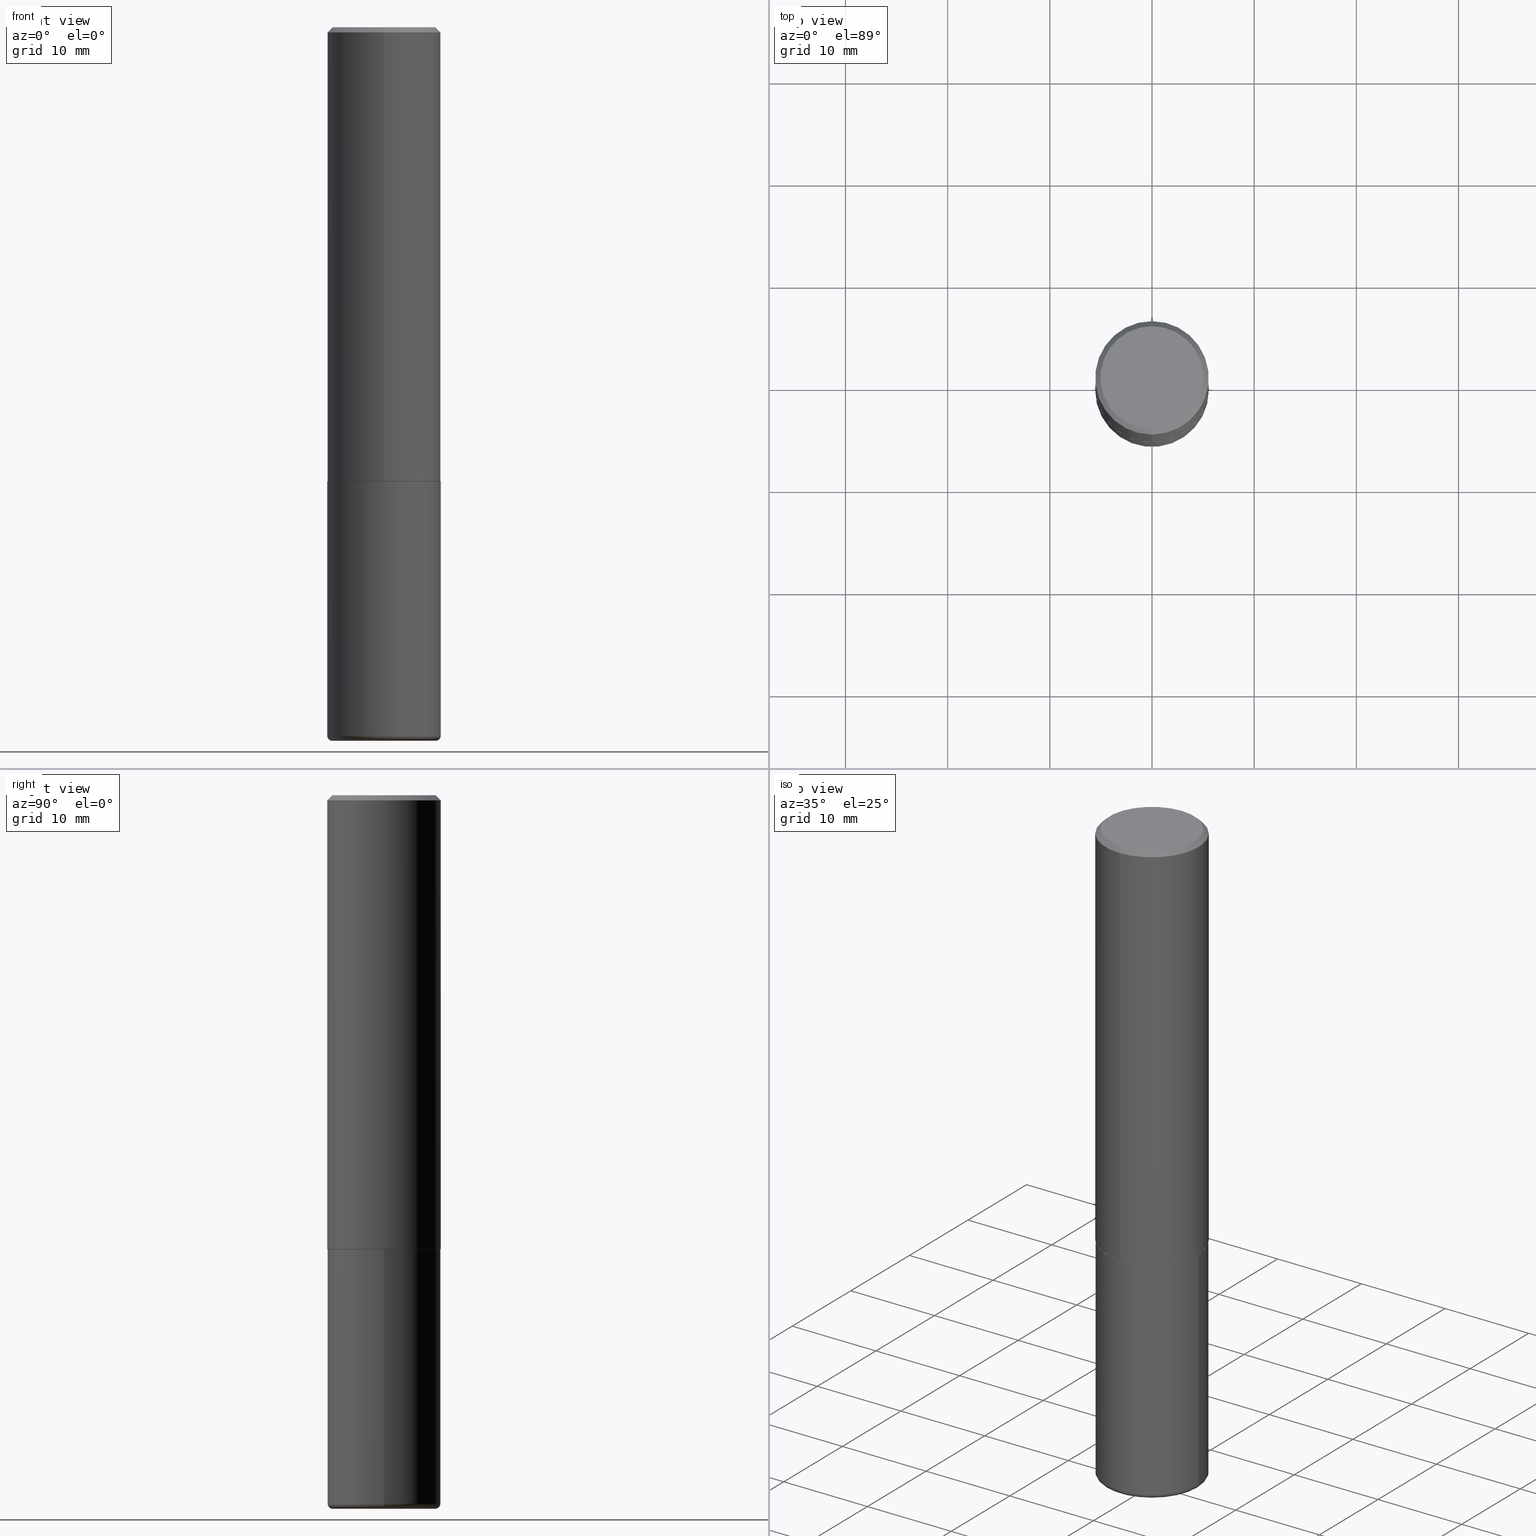
[diagram: canonical four-view strip — front | top / right | iso, engineering-drawing reading convention]
A machine part, canonical four-view strip (front | top / right | iso — engineering-drawing reading convention). The complete STEP part file that produces these views, byte-faithful:
ISO-10303-21;
HEADER;
FILE_DESCRIPTION (( 'STEP AP203' ),
    '1' );
FILE_NAME ('36573.STEP',
    '2024-03-01T16:44:47',
    ( '' ),
    ( '' ),
    'SwSTEP 2.0',
    'SolidWorks 2023',
    '' );
FILE_SCHEMA (( 'CONFIG_CONTROL_DESIGN' ));
ENDSEC;

DATA;
#1 = MANIFOLD_SOLID_BREP ( 'Body-Move/Copy2[2]', #355 ) ;
#2 = EDGE_CURVE ( 'NONE', #56, #153, #108, .T. ) ;
#3 = APPROVAL_PERSON_ORGANIZATION ( #359, #279, #174 ) ;
#4 = MECHANICAL_CONTEXT ( 'NONE', #30, 'mechanical' ) ;
#5 = ADVANCED_FACE ( 'NONE', ( #87 ), #303, .T. ) ;
#6 = CARTESIAN_POINT ( 'NONE',  ( 4.279570410823988484E-29, -6.110092342975504671E-15, -1.750000000000000000 ) ) ;
#7 = EDGE_CURVE ( 'NONE', #318, #95, #399, .T. ) ;
#8 = PERSON_AND_ORGANIZATION ( #26, #242 ) ;
#9 = AXIS2_PLACEMENT_3D ( 'NONE', #306, #89, #154 ) ;
#10 = PERSON_AND_ORGANIZATION_ROLE ( 'creator' ) ;
#11 = ADVANCED_FACE ( 'NONE', ( #217 ), #32, .F. ) ;
#12 = CARTESIAN_POINT ( 'NONE',  ( 6.725039217009124520E-29, -9.601573681818649859E-15, -2.750000000000000000 ) ) ;
#13 = DIRECTION ( 'NONE',  ( -2.444696018553826107E-29, 3.492588014715522738E-15, 1.000000000000000000 ) ) ;
#14 = EDGE_LOOP ( 'NONE', ( #213, #380 ) ) ;
#15 = DIRECTION ( 'NONE',  ( 2.438088387897960049E-29, -3.491481338843145188E-15, -1.000000000000000000 ) ) ;
#16 = ORIENTED_EDGE ( 'NONE', *, *, #405, .F. ) ;
#17 = DIRECTION ( 'NONE',  ( -2.445468806185136597E-29, 3.491481338843145583E-15, 1.000000000000000000 ) ) ;
#18 = ORIENTED_EDGE ( 'NONE', *, *, #177, .F. ) ;
#19 = AXIS2_PLACEMENT_3D ( 'NONE', #210, #331, #44 ) ;
#20 = CARTESIAN_POINT ( 'NONE',  ( -0.1987500000000000100, -8.083400907531010713E-15, -2.750000000000000000 ) ) ;
#21 = EDGE_LOOP ( 'NONE', ( #350, #384, #18, #62 ) ) ;
#22 = EDGE_CURVE ( 'NONE', #270, #396, #317, .T. ) ;
#23 = DIRECTION ( 'NONE',  ( 1.000000000000000000, -6.982962677686266711E-15, 4.876176775795935232E-29 ) ) ;
#24 = VERTEX_POINT ( 'NONE', #27 ) ;
#25 = LINE ( 'NONE', #170, #293 ) ;
#26 = PERSON ( 'UNSPECIFIED', 'UNSPECIFIED', 'UNSPECIFIED', ('UNSPECIFIED'), ('UNSPECIFIED'), ('UNSPECIFIED') ) ;
#27 = CARTESIAN_POINT ( 'NONE',  ( 0.1987500000000000100, -1.098943751400879489E-14, -2.750000000000000000 ) ) ;
#28 = ORIENTED_EDGE ( 'NONE', *, *, #2, .F. ) ;
#29 = FACE_OUTER_BOUND ( 'NONE', #21, .T. ) ;
#30 = APPLICATION_CONTEXT ( 'configuration controlled 3d designs of mechanical parts and assemblies' ) ;
#31 = DIRECTION ( 'NONE',  ( -2.444696018553825827E-29, 3.492588014715522738E-15, 1.000000000000000000 ) ) ;
#32 = PLANE ( 'NONE',  #220 ) ;
#33 = CC_DESIGN_PERSON_AND_ORGANIZATION_ASSIGNMENT ( #297, #10, ( #387 ) ) ;
#34 = DATE_TIME_ROLE ( 'creation_date' ) ;
#35 = DIRECTION ( 'NONE',  ( 1.000000000000000000, -6.982962677686266711E-15, 4.883557194083112901E-29 ) ) ;
#36 = DIRECTION ( 'NONE',  ( 1.000000000000000000, 0.000000000000000000, 0.000000000000000000 ) ) ;
#37 = AXIS2_PLACEMENT_3D ( 'NONE', #298, #113, #36 ) ;
#38 = DIRECTION ( 'NONE',  ( 1.000000000000000000, -6.982962677686265133E-15, 0.000000000000000000 ) ) ;
#39 = CARTESIAN_POINT ( 'NONE',  ( 1.547206807117660550E-15, 0.2177499999999938651, -1.750000000000000444 ) ) ;
#40 = ADVANCED_FACE ( 'NONE', ( #357 ), #230, .T. ) ;
#41 = DATE_AND_TIME ( #263, #53 ) ;
#42 = COORDINATED_UNIVERSAL_TIME_OFFSET ( 5, 0, .BEHIND. ) ;
#43 = SHAPE_DEFINITION_REPRESENTATION ( #277, #329 ) ;
#44 = DIRECTION ( 'NONE',  ( -6.982962677686265922E-15, -1.000000000000000000, 3.492588014715522738E-15 ) ) ;
#45 = AXIS2_PLACEMENT_3D ( 'NONE', #311, #127, #349 ) ;
#46 = CC_DESIGN_APPROVAL ( #251, ( #221 ) ) ;
#47 = FACE_OUTER_BOUND ( 'NONE', #309, .T. ) ;
#48 = EDGE_CURVE ( 'NONE', #153, #401, #332, .T. ) ;
#49 = EDGE_CURVE ( 'NONE', #318, #316, #159, .T. ) ;
#50 = DIRECTION ( 'NONE',  ( -2.445468806185136597E-29, 3.491481338843145583E-15, 1.000000000000000000 ) ) ;
#51 = VECTOR ( 'NONE', #326, 39.37007874015748854 ) ;
#52 = AXIS2_PLACEMENT_3D ( 'NONE', #63, #257, #276 ) ;
#53 = LOCAL_TIME ( 11, 44, 47.00000000000000000, #386 ) ;
#54 = ADVANCED_FACE ( 'NONE', ( #364 ), #188, .T. ) ;
#55 = CARTESIAN_POINT ( 'NONE',  ( 0.2187500000000000000, -1.527523085743870843E-15, 1.066663669705360885E-29 ) ) ;
#56 = VERTEX_POINT ( 'NONE', #175 ) ;
#57 = FACE_OUTER_BOUND ( 'NONE', #314, .T. ) ;
#58 = CIRCLE ( 'NONE', #9, 0.01999999999999988939 ) ;
#59 = ORIENTED_EDGE ( 'NONE', *, *, #233, .T. ) ;
#60 = LOCAL_TIME ( 11, 44, 47.00000000000000000, #142 ) ;
#61 = CARTESIAN_POINT ( 'NONE',  ( -1.500733937012521740E-15, -0.2187500000000000555, -0.01999999999999928571 ) ) ;
#62 = ORIENTED_EDGE ( 'NONE', *, *, #233, .F. ) ;
#63 = CARTESIAN_POINT ( 'NONE',  ( 4.889392037107664756E-31, -6.985176029431062485E-17, -0.02000000000000005246 ) ) ;
#64 = EDGE_LOOP ( 'NONE', ( #191, #218, #417, #256 ) ) ;
#65 = EDGE_CURVE ( 'NONE', #122, #401, #262, .T. ) ;
#66 =( CONVERSION_BASED_UNIT ( 'INCH', #352 ) LENGTH_UNIT ( ) NAMED_UNIT ( #115 ) );
#67 = ORIENTED_EDGE ( 'NONE', *, *, #229, .T. ) ;
#68 = EDGE_CURVE ( 'NONE', #163, #396, #93, .T. ) ;
#69 = DIRECTION ( 'NONE',  ( -6.982962677686265922E-15, -1.000000000000000000, 3.492588014715522738E-15 ) ) ;
#70 = PERSON_AND_ORGANIZATION ( #26, #242 ) ;
#71 = DIRECTION ( 'NONE',  ( -2.444696018553826107E-29, 3.492588014715522738E-15, 1.000000000000000000 ) ) ;
#72 = CIRCLE ( 'NONE', #45, 0.2187500000000001943 ) ;
#73 = APPLICATION_PROTOCOL_DEFINITION ( 'international standard', 'config_control_design', 1994, #149 ) ;
#74 = FACE_OUTER_BOUND ( 'NONE', #64, .T. ) ;
#75 = CALENDAR_DATE ( 2024, 1, 3 ) ;
#76 = CYLINDRICAL_SURFACE ( 'NONE', #19, 0.2187500000000000833 ) ;
#77 = AXIS2_PLACEMENT_3D ( 'NONE', #169, #288, #69 ) ;
#78 = AXIS2_PLACEMENT_3D ( 'NONE', #182, #152, #302 ) ;
#79 = CARTESIAN_POINT ( 'NONE',  ( 6.676129840885423672E-29, -9.531744055041786561E-15, -2.729999999999999982 ) ) ;
#80 = DESIGN_CONTEXT ( 'detailed design', #149, 'design' ) ;
#81 = DIRECTION ( 'NONE',  ( 1.000000000000000000, -6.982962677686267499E-15, 0.000000000000000000 ) ) ;
#82 = EDGE_CURVE ( 'NONE', #404, #270, #283, .T. ) ;
#83 = DIRECTION ( 'NONE',  ( -2.445468806185136877E-29, 3.491481338843145188E-15, 1.000000000000000000 ) ) ;
#84 = CLOSED_SHELL ( 'NONE', ( #351, #235, #161, #376, #54, #5 ) ) ;
#85 = CIRCLE ( 'NONE', #155, 0.1987500000000002043 ) ;
#86 = CARTESIAN_POINT ( 'NONE',  ( 6.676129840885423672E-29, -9.531744055041786561E-15, -2.729999999999999982 ) ) ;
#87 = FACE_OUTER_BOUND ( 'NONE', #252, .T. ) ;
#88 = EDGE_LOOP ( 'NONE', ( #101, #250, #59, #167 ) ) ;
#89 = DIRECTION ( 'NONE',  ( 7.105427357601001859E-15, 1.000000000000000000, -3.491481338843145583E-15 ) ) ;
#90 = ORIENTED_EDGE ( 'NONE', *, *, #156, .T. ) ;
#91 = DIRECTION ( 'NONE',  ( 1.000000000000000000, -6.982962677686265133E-15, 0.000000000000000000 ) ) ;
#92 = ADVANCED_FACE ( 'NONE', ( #74 ), #76, .T. ) ;
#93 = CIRCLE ( 'NONE', #254, 0.2187500000000000000 ) ;
#94 = AXIS2_PLACEMENT_3D ( 'NONE', #372, #340, #266 ) ;
#95 = VERTEX_POINT ( 'NONE', #208 ) ;
#96 = DIRECTION ( 'NONE',  ( -2.445468806185136597E-29, 3.491481338843145583E-15, 1.000000000000000000 ) ) ;
#97 = CARTESIAN_POINT ( 'NONE',  ( 1.387863832190146810E-15, 0.1987500000000002043, -8.028889605074538150E-16 ) ) ;
#98 = ORIENTED_EDGE ( 'NONE', *, *, #82, .F. ) ;
#99 = CARTESIAN_POINT ( 'NONE',  ( 1.457693458967008925E-15, 0.1987500000000002043, -9.116260530901970397E-16 ) ) ;
#100 = DIRECTION ( 'NONE',  ( 6.982962677686265922E-15, 1.000000000000000000, -3.492588014715522738E-15 ) ) ;
#101 = ORIENTED_EDGE ( 'NONE', *, *, #49, .F. ) ;
#102 = EDGE_CURVE ( 'NONE', #24, #95, #214, .T. ) ;
#103 =( NAMED_UNIT ( * ) PLANE_ANGLE_UNIT ( ) SI_UNIT ( $, .RADIAN. ) );
#104 = APPROVAL_ROLE ( '' ) ;
#105 = DIRECTION ( 'NONE',  ( 2.444696018553825827E-29, -3.492588014715522738E-15, -1.000000000000000000 ) ) ;
#106 = PERSON_AND_ORGANIZATION_ROLE ( 'creator' ) ;
#107 = DIRECTION ( 'NONE',  ( 2.444696018553826107E-29, -3.492588014715522738E-15, -1.000000000000000000 ) ) ;
#108 = LINE ( 'NONE', #39, #143 ) ;
#109 = AXIS2_PLACEMENT_3D ( 'NONE', #389, #238, #367 ) ;
#110 = AXIS2_PLACEMENT_3D ( 'NONE', #234, #324, #38 ) ;
#111 = LOCAL_TIME ( 11, 44, 47.00000000000000000, #42 ) ;
#112 = DIRECTION ( 'NONE',  ( -2.445468806185136597E-29, 3.491481338843145583E-15, 1.000000000000000000 ) ) ;
#113 = DIRECTION ( 'NONE',  ( 0.000000000000000000, 0.000000000000000000, 1.000000000000000000 ) ) ;
#114 = ORIENTED_EDGE ( 'NONE', *, *, #65, .T. ) ;
#115 = DIMENSIONAL_EXPONENTS ( 1.000000000000000000, 0.000000000000000000, 0.000000000000000000, 0.000000000000000000, 0.000000000000000000, 0.000000000000000000, 0.000000000000000000 ) ;
#116 = ADVANCED_FACE ( 'NONE', ( #240 ), #400, .T. ) ;
#117 = PLANE ( 'NONE',  #272 ) ;
#118 = ORIENTED_EDGE ( 'NONE', *, *, #206, .T. ) ;
#119 = CONICAL_SURFACE ( 'NONE', #52, 0.2187500000000000000, 0.7853981633974471688 ) ;
#120 = ORIENTED_EDGE ( 'NONE', *, *, #147, .F. ) ;
#121 = CARTESIAN_POINT ( 'NONE',  ( 4.278218032469195338E-29, -6.112029025752164101E-15, -1.749999999999999556 ) ) ;
#122 = VERTEX_POINT ( 'NONE', #139 ) ;
#123 = EDGE_CURVE ( 'NONE', #270, #404, #85, .T. ) ;
#124 = DIRECTION ( 'NONE',  ( -2.444696018553826107E-29, 3.492588014715522738E-15, 1.000000000000000000 ) ) ;
#125 = DIRECTION ( 'NONE',  ( -2.445468806185136877E-29, 3.491481338843145188E-15, 1.000000000000000000 ) ) ;
#126 = ORIENTED_EDGE ( 'NONE', *, *, #405, .T. ) ;
#127 = DIRECTION ( 'NONE',  ( -2.444696018553826107E-29, 3.492588014715522738E-15, 1.000000000000000000 ) ) ;
#128 = VECTOR ( 'NONE', #135, 39.37007874015748143 ) ;
#129 = CIRCLE ( 'NONE', #151, 0.2187500000000000000 ) ;
#130 = ORIENTED_EDGE ( 'NONE', *, *, #289, .F. ) ;
#131 = PLANE ( 'NONE',  #284 ) ;
#132 = ORIENTED_EDGE ( 'NONE', *, *, #147, .T. ) ;
#133 = DIRECTION ( 'NONE',  ( 4.937700262164541731E-15, 0.7071067811865442421, -0.7071067811865507924 ) ) ;
#134 = CARTESIAN_POINT ( 'NONE',  ( -1.432128957034807395E-15, -0.1987500000000002043, 4.766776827592246339E-16 ) ) ;
#135 = DIRECTION ( 'NONE',  ( -4.851104656540957964E-15, -0.7071067811865491270, -0.7071067811865459074 ) ) ;
#136 = AXIS2_PLACEMENT_3D ( 'NONE', #162, #195, #413 ) ;
#137 = APPROVAL_DATE_TIME ( #330, #251 ) ;
#138 = CC_DESIGN_APPROVAL ( #279, ( #387 ) ) ;
#139 = CARTESIAN_POINT ( 'NONE',  ( -1.520540123066141639E-15, -0.2177500000000061053, -1.749999999999998890 ) ) ;
#140 = DATE_TIME_ROLE ( 'classification_date' ) ;
#141 = DIRECTION ( 'NONE',  ( -2.445468806185136597E-29, 3.491481338843145583E-15, 1.000000000000000000 ) ) ;
#142 = COORDINATED_UNIVERSAL_TIME_OFFSET ( 5, 0, .BEHIND. ) ;
#143 = VECTOR ( 'NONE', #403, 39.37007874015748854 ) ;
#144 = APPROVAL_DATE_TIME ( #366, #279 ) ;
#145 = SECURITY_CLASSIFICATION ( '', '', #201 ) ;
#146 = CARTESIAN_POINT ( 'NONE',  ( -1.520540123066141639E-15, -0.2177500000000061053, -1.749999999999998890 ) ) ;
#147 = EDGE_CURVE ( 'NONE', #24, #249, #180, .T. ) ;
#148 = APPROVAL_STATUS ( 'not_yet_approved' ) ;
#149 = APPLICATION_CONTEXT ( 'configuration controlled 3d designs of mechanical parts and assemblies' ) ;
#150 = ORIENTED_EDGE ( 'NONE', *, *, #7, .F. ) ;
#151 = AXIS2_PLACEMENT_3D ( 'NONE', #6, #141, #245 ) ;
#152 = DIRECTION ( 'NONE',  ( -2.444696018553826107E-29, 3.492588014715522738E-15, 1.000000000000000000 ) ) ;
#153 = VERTEX_POINT ( 'NONE', #296 ) ;
#154 = DIRECTION ( 'NONE',  ( -1.000000000000000000, 7.105427357601014480E-15, 0.000000000000000000 ) ) ;
#155 = AXIS2_PLACEMENT_3D ( 'NONE', #232, #71, #202 ) ;
#156 = EDGE_CURVE ( 'NONE', #316, #157, #129, .T. ) ;
#157 = VERTEX_POINT ( 'NONE', #335 ) ;
#158 = FACE_OUTER_BOUND ( 'NONE', #348, .T. ) ;
#159 = LINE ( 'NONE', #411, #203 ) ;
#160 = ORIENTED_EDGE ( 'NONE', *, *, #363, .F. ) ;
#161 = ADVANCED_FACE ( 'NONE', ( #398 ), #117, .F. ) ;
#162 = CARTESIAN_POINT ( 'NONE',  ( 0.000000000000000000, 0.000000000000000000, 0.000000000000000000 ) ) ;
#163 = VERTEX_POINT ( 'NONE', #212 ) ;
#164 =( LENGTH_UNIT ( ) NAMED_UNIT ( * ) SI_UNIT ( $, .METRE. ) );
#165 = EDGE_CURVE ( 'NONE', #122, #56, #320, .T. ) ;
#166 = AXIS2_PLACEMENT_3D ( 'NONE', #79, #50, #183 ) ;
#167 = ORIENTED_EDGE ( 'NONE', *, *, #156, .F. ) ;
#168 = CARTESIAN_POINT ( 'NONE',  ( 4.278218032469195338E-29, -6.112029025752164101E-15, -1.749999999999999556 ) ) ;
#169 = CARTESIAN_POINT ( 'NONE',  ( 0.000000000000000000, 0.000000000000000000, 0.000000000000000000 ) ) ;
#170 = CARTESIAN_POINT ( 'NONE',  ( 1.527523085743871040E-15, 0.2187499999999999167, -0.02000000000000081574 ) ) ;
#171 = PERSON_AND_ORGANIZATION_ROLE ( 'design_supplier' ) ;
#172 = CARTESIAN_POINT ( 'NONE',  ( 4.889392037107664756E-31, -6.985176029431062485E-17, -0.02000000000000005246 ) ) ;
#173 = CC_DESIGN_PERSON_AND_ORGANIZATION_ASSIGNMENT ( #264, #171, ( #221 ) ) ;
#174 = APPROVAL_ROLE ( '' ) ;
#175 = CARTESIAN_POINT ( 'NONE',  ( 1.550759520796461843E-15, 0.2177499999999938651, -1.750000000000000444 ) ) ;
#176 = PERSON_AND_ORGANIZATION ( #26, #242 ) ;
#177 = EDGE_CURVE ( 'NONE', #157, #316, #196, .T. ) ;
#178 = AXIS2_PLACEMENT_3D ( 'NONE', #12, #186, #373 ) ;
#179 = COORDINATED_UNIVERSAL_TIME_OFFSET ( 5, 0, .BEHIND. ) ;
#180 = CIRCLE ( 'NONE', #110, 0.1987500000000000100 ) ;
#181 = CARTESIAN_POINT ( 'NONE',  ( 0.1987500000000000100, -1.091960788723193160E-14, -2.729999999999999982 ) ) ;
#182 = CARTESIAN_POINT ( 'NONE',  ( 4.278218032469195338E-29, -6.112029025752164101E-15, -1.749999999999999556 ) ) ;
#183 = DIRECTION ( 'NONE',  ( 1.000000000000000000, -6.982962677686262766E-15, 0.000000000000000000 ) ) ;
#184 = VECTOR ( 'NONE', #124, 39.37007874015748143 ) ;
#185 = EDGE_LOOP ( 'NONE', ( #160, #197, #341, #194 ) ) ;
#186 = DIRECTION ( 'NONE',  ( 2.438088387897960049E-29, -3.491481338843145188E-15, -1.000000000000000000 ) ) ;
#187 = ORIENTED_EDGE ( 'NONE', *, *, #48, .F. ) ;
#188 = TOROIDAL_SURFACE ( 'NONE', #368, 0.1987500000000000100, 0.01999999999999988939 ) ;
#189 = ORIENTED_EDGE ( 'NONE', *, *, #289, .T. ) ;
#190 = CARTESIAN_POINT ( 'NONE',  ( 4.889392037107664756E-31, -6.985176029431062485E-17, -0.02000000000000005246 ) ) ;
#191 = ORIENTED_EDGE ( 'NONE', *, *, #265, .T. ) ;
#192 = ADVANCED_FACE ( 'NONE', ( #377 ), #407, .T. ) ;
#193 = CYLINDRICAL_SURFACE ( 'NONE', #356, 0.2187500000000000000 ) ;
#194 = ORIENTED_EDGE ( 'NONE', *, *, #68, .F. ) ;
#195 = DIRECTION ( 'NONE',  ( -2.445468806185136597E-29, 3.491481338843145583E-15, 1.000000000000000000 ) ) ;
#196 = CIRCLE ( 'NONE', #391, 0.2187500000000000000 ) ;
#197 = ORIENTED_EDGE ( 'NONE', *, *, #48, .T. ) ;
#198 = UNCERTAINTY_MEASURE_WITH_UNIT (LENGTH_MEASURE( 1.000000000000000082E-05 ), #66, 'distance_accuracy_value', 'NONE');
#199 = DIRECTION ( 'NONE',  ( -2.444696018553826107E-29, 3.492588014715522738E-15, 1.000000000000000000 ) ) ;
#200 = EDGE_CURVE ( 'NONE', #95, #318, #362, .T. ) ;
#201 = SECURITY_CLASSIFICATION_LEVEL ( 'unclassified' ) ;
#202 = DIRECTION ( 'NONE',  ( -6.982962677686265922E-15, -1.000000000000000000, 3.492588014715522343E-15 ) ) ;
#203 = VECTOR ( 'NONE', #125, 39.37007874015748143 ) ;
#204 = AXIS2_PLACEMENT_3D ( 'NONE', #336, #334, #247 ) ;
#205 = LOCAL_TIME ( 11, 44, 47.00000000000000000, #295 ) ;
#206 = EDGE_CURVE ( 'NONE', #249, #318, #58, .T. ) ;
#207 = CALENDAR_DATE ( 2024, 1, 3 ) ;
#208 = CARTESIAN_POINT ( 'NONE',  ( 0.2187499999999999445, -1.105926714078565662E-14, -2.729999999999999982 ) ) ;
#209 = APPROVAL_DATE_TIME ( #321, #397 ) ;
#210 = CARTESIAN_POINT ( 'NONE',  ( 0.000000000000000000, 0.000000000000000000, 0.000000000000000000 ) ) ;
#211 = DIRECTION ( 'NONE',  ( -6.982962677686265133E-15, -1.000000000000000000, 3.492862791899308071E-15 ) ) ;
#212 = CARTESIAN_POINT ( 'NONE',  ( 1.527523085743871040E-15, 0.2187499999999999167, -0.02000000000000081574 ) ) ;
#213 = ORIENTED_EDGE ( 'NONE', *, *, #82, .T. ) ;
#214 = CIRCLE ( 'NONE', #236, 0.01999999999999988939 ) ;
#215 = ORIENTED_EDGE ( 'NONE', *, *, #102, .T. ) ;
#216 = ORIENTED_EDGE ( 'NONE', *, *, #102, .F. ) ;
#217 = FACE_OUTER_BOUND ( 'NONE', #14, .T. ) ;
#218 = ORIENTED_EDGE ( 'NONE', *, *, #363, .T. ) ;
#219 = DIRECTION ( 'NONE',  ( -2.445468806185136597E-29, 3.491481338843145583E-15, 1.000000000000000000 ) ) ;
#220 = AXIS2_PLACEMENT_3D ( 'NONE', #97, #105, #100 ) ;
#221 = PRODUCT_DEFINITION_FORMATION_WITH_SPECIFIED_SOURCE ( 'ANY', '', #344, .NOT_KNOWN. ) ;
#222 = ORIENTED_EDGE ( 'NONE', *, *, #165, .F. ) ;
#223 = DIRECTION ( 'NONE',  ( -6.982962677686265133E-15, -1.000000000000000000, 3.492862791899308071E-15 ) ) ;
#224 = ORIENTED_EDGE ( 'NONE', *, *, #123, .F. ) ;
#225 = CARTESIAN_POINT ( 'NONE',  ( 0.000000000000000000, 0.000000000000000000, 0.000000000000000000 ) ) ;
#226 = CARTESIAN_POINT ( 'NONE',  ( -1.500733937012521740E-15, -0.2187500000000000555, -0.01999999999999928571 ) ) ;
#227 = ORIENTED_EDGE ( 'NONE', *, *, #402, .T. ) ;
#228 =( GEOMETRIC_REPRESENTATION_CONTEXT ( 3 ) GLOBAL_UNCERTAINTY_ASSIGNED_CONTEXT ( ( #198 ) ) GLOBAL_UNIT_ASSIGNED_CONTEXT ( ( #66, #103, #354 ) ) REPRESENTATION_CONTEXT ( 'NONE', 'WORKASPACE' ) );
#229 = EDGE_CURVE ( 'NONE', #56, #122, #374, .T. ) ;
#230 = CYLINDRICAL_SURFACE ( 'NONE', #77, 0.2187500000000000833 ) ;
#231 = PERSON_AND_ORGANIZATION ( #26, #242 ) ;
#232 = CARTESIAN_POINT ( 'NONE',  ( 5.316582746123012176E-45, -7.595477326190008111E-31, -2.174741851654860303E-16 ) ) ;
#233 = EDGE_CURVE ( 'NONE', #95, #157, #248, .T. ) ;
#234 = CARTESIAN_POINT ( 'NONE',  ( 6.725039217009124520E-29, -9.601573681818649859E-15, -2.750000000000000000 ) ) ;
#235 = ADVANCED_FACE ( 'NONE', ( #271 ), #415, .T. ) ;
#236 = AXIS2_PLACEMENT_3D ( 'NONE', #181, #301, #388 ) ;
#237 = PERSON_AND_ORGANIZATION_ROLE ( 'classification_officer' ) ;
#238 = DIRECTION ( 'NONE',  ( -2.444696018553826107E-29, 3.492588014715522738E-15, 1.000000000000000000 ) ) ;
#239 = APPROVAL_STATUS ( 'not_yet_approved' ) ;
#240 = FACE_OUTER_BOUND ( 'NONE', #353, .T. ) ;
#241 = VECTOR ( 'NONE', #83, 39.37007874015748143 ) ;
#242 = ORGANIZATION ( 'UNSPECIFIED', 'UNSPECIFIED', '' ) ;
#243 = ADVANCED_FACE ( 'NONE', ( #47 ), #255, .T. ) ;
#244 = LOCAL_TIME ( 11, 44, 47.00000000000000000, #179 ) ;
#245 = DIRECTION ( 'NONE',  ( 1.000000000000000000, -6.982962677686267499E-15, 0.000000000000000000 ) ) ;
#246 = DIRECTION ( 'NONE',  ( -1.000000000000000000, 6.982962677686265922E-15, -4.876176775795935793E-29 ) ) ;
#247 = DIRECTION ( 'NONE',  ( -6.982962677686265922E-15, -1.000000000000000000, 3.763740060157423393E-15 ) ) ;
#248 = LINE ( 'NONE', #55, #241 ) ;
#249 = VERTEX_POINT ( 'NONE', #20 ) ;
#250 = ORIENTED_EDGE ( 'NONE', *, *, #7, .T. ) ;
#251 = APPROVAL ( #148, 'UNSPECIFIED' ) ;
#252 = EDGE_LOOP ( 'NONE', ( #120, #130 ) ) ;
#253 = CARTESIAN_POINT ( 'NONE',  ( -0.2187499999999999445, -7.977431820566568982E-15, -2.729999999999999982 ) ) ;
#254 = AXIS2_PLACEMENT_3D ( 'NONE', #172, #299, #211 ) ;
#255 = CONICAL_SURFACE ( 'NONE', #78, 0.2177499999999999991, 0.7853981633976532262 ) ;
#256 = ORIENTED_EDGE ( 'NONE', *, *, #328, .F. ) ;
#257 = DIRECTION ( 'NONE',  ( 2.444696018553826107E-29, -3.492588014715522738E-15, -1.000000000000000000 ) ) ;
#258 = ORIENTED_EDGE ( 'NONE', *, *, #177, .T. ) ;
#259 = CARTESIAN_POINT ( 'NONE',  ( 1.554312234475219551E-15, 0.2187500000000000833, -7.640036282190209070E-16 ) ) ;
#260 = AXIS2_PLACEMENT_3D ( 'NONE', #121, #13, #308 ) ;
#261 = CALENDAR_DATE ( 2024, 1, 3 ) ;
#262 = LINE ( 'NONE', #146, #51 ) ;
#263 = CALENDAR_DATE ( 2024, 1, 3 ) ;
#264 = PERSON_AND_ORGANIZATION ( #26, #242 ) ;
#265 = EDGE_CURVE ( 'NONE', #401, #153, #72, .T. ) ;
#266 = DIRECTION ( 'NONE',  ( -6.982962677686265922E-15, -1.000000000000000000, 3.763740060157423393E-15 ) ) ;
#267 = CARTESIAN_POINT ( 'NONE',  ( 4.279570410823988484E-29, -6.110092342975504671E-15, -1.750000000000000000 ) ) ;
#268 = CARTESIAN_POINT ( 'NONE',  ( 6.676129840885423672E-29, -9.531744055041786561E-15, -2.729999999999999982 ) ) ;
#269 = ADVANCED_FACE ( 'NONE', ( #158 ), #119, .T. ) ;
#270 = VERTEX_POINT ( 'NONE', #134 ) ;
#271 = FACE_OUTER_BOUND ( 'NONE', #385, .T. ) ;
#272 = AXIS2_PLACEMENT_3D ( 'NONE', #267, #15, #246 ) ;
#273 = DIRECTION ( 'NONE',  ( -2.445468806185136597E-29, 3.491481338843145583E-15, 1.000000000000000000 ) ) ;
#274 = EDGE_LOOP ( 'NONE', ( #28, #67, #114, #187 ) ) ;
#275 = MANIFOLD_SOLID_BREP ( 'Body-Move/Copy2[1]', #84 ) ;
#276 = DIRECTION ( 'NONE',  ( 6.982962677686265133E-15, 1.000000000000000000, -3.492862791899308071E-15 ) ) ;
#277 = PRODUCT_DEFINITION_SHAPE ( 'NONE', 'NONE',  #387 ) ;
#278 = EDGE_LOOP ( 'NONE', ( #345, #189, #215, #150 ) ) ;
#279 = APPROVAL ( #239, 'UNSPECIFIED' ) ;
#280 = DIRECTION ( 'NONE',  ( -2.444696018553826107E-29, 3.492588014715522738E-15, 1.000000000000000000 ) ) ;
#281 = EDGE_LOOP ( 'NONE', ( #258, #90 ) ) ;
#282 = CARTESIAN_POINT ( 'NONE',  ( -0.2187500000000000000, -6.266605964533427643E-15, -1.750000000000000000 ) ) ;
#283 = CIRCLE ( 'NONE', #109, 0.1987500000000002043 ) ;
#284 = AXIS2_PLACEMENT_3D ( 'NONE', #168, #31, #382 ) ;
#285 = APPROVAL_PERSON_ORGANIZATION ( #176, #251, #390 ) ;
#286 = ORIENTED_EDGE ( 'NONE', *, *, #265, .F. ) ;
#287 = DIRECTION ( 'NONE',  ( -2.444696018553826107E-29, 3.492588014715522738E-15, 1.000000000000000000 ) ) ;
#288 = DIRECTION ( 'NONE',  ( -2.444696018553826107E-29, 3.492588014715522738E-15, 1.000000000000000000 ) ) ;
#289 = EDGE_CURVE ( 'NONE', #249, #24, #312, .T. ) ;
#290 = CARTESIAN_POINT ( 'NONE',  ( -1.527523085743829231E-15, -0.2187500000000063005, -1.748999999999999000 ) ) ;
#291 = DATE_AND_TIME ( #207, #205 ) ;
#292 = CARTESIAN_POINT ( 'NONE',  ( 4.889392037107664756E-31, -6.985176029431062485E-17, -0.02000000000000005246 ) ) ;
#293 = VECTOR ( 'NONE', #133, 39.37007874015748143 ) ;
#294 = CC_DESIGN_SECURITY_CLASSIFICATION ( #145, ( #221 ) ) ;
#295 = COORDINATED_UNIVERSAL_TIME_OFFSET ( 5, 0, .BEHIND. ) ;
#296 = CARTESIAN_POINT ( 'NONE',  ( 1.554312234475241442E-15, 0.2187499999999940603, -1.749000000000000554 ) ) ;
#297 = PERSON_AND_ORGANIZATION ( #26, #242 ) ;
#298 = CARTESIAN_POINT ( 'NONE',  ( 0.000000000000000000, 0.000000000000000000, 0.000000000000000000 ) ) ;
#299 = DIRECTION ( 'NONE',  ( -2.444696018553826107E-29, 3.492588014715522738E-15, 1.000000000000000000 ) ) ;
#300 = APPROVAL_STATUS ( 'not_yet_approved' ) ;
#301 = DIRECTION ( 'NONE',  ( -6.982962677686266711E-15, -1.000000000000000000, 3.491481338843145583E-15 ) ) ;
#302 = DIRECTION ( 'NONE',  ( -6.982962677686265922E-15, -1.000000000000000000, 3.763740060157423393E-15 ) ) ;
#303 = PLANE ( 'NONE',  #178 ) ;
#304 = AXIS2_PLACEMENT_3D ( 'NONE', #379, #96, #91 ) ;
#305 = CC_DESIGN_PERSON_AND_ORGANIZATION_ASSIGNMENT ( #8, #237, ( #145 ) ) ;
#306 = CARTESIAN_POINT ( 'NONE',  ( -0.1987500000000000100, -8.119540367718587568E-15, -2.729999999999999982 ) ) ;
#307 = ORIENTED_EDGE ( 'NONE', *, *, #200, .F. ) ;
#308 = DIRECTION ( 'NONE',  ( -6.982962677686265922E-15, -1.000000000000000000, 3.763740060157423393E-15 ) ) ;
#309 = EDGE_LOOP ( 'NONE', ( #412, #378, #286, #409 ) ) ;
#310 = AXIS2_PLACEMENT_3D ( 'NONE', #360, #199, #322 ) ;
#311 = CARTESIAN_POINT ( 'NONE',  ( 4.275773336450641228E-29, -6.108536437737448619E-15, -1.748999999999999888 ) ) ;
#312 = CIRCLE ( 'NONE', #304, 0.1987500000000000100 ) ;
#313 = CC_DESIGN_PERSON_AND_ORGANIZATION_ASSIGNMENT ( #327, #106, ( #221 ) ) ;
#314 = EDGE_LOOP ( 'NONE', ( #222, #414 ) ) ;
#315 = LINE ( 'NONE', #259, #346 ) ;
#316 = VERTEX_POINT ( 'NONE', #282 ) ;
#317 = LINE ( 'NONE', #226, #128 ) ;
#318 = VERTEX_POINT ( 'NONE', #253 ) ;
#319 = CC_DESIGN_DATE_AND_TIME_ASSIGNMENT ( #291, #140, ( #145 ) ) ;
#320 = CIRCLE ( 'NONE', #94, 0.2177499999999999991 ) ;
#321 = DATE_AND_TIME ( #261, #111 ) ;
#322 = DIRECTION ( 'NONE',  ( -6.982962677686265922E-15, -1.000000000000000000, 3.746534391310986401E-15 ) ) ;
#323 = PERSON_AND_ORGANIZATION_ROLE ( 'design_owner' ) ;
#324 = DIRECTION ( 'NONE',  ( -2.445468806185136597E-29, 3.491481338843145583E-15, 1.000000000000000000 ) ) ;
#325 = AXIS2_PLACEMENT_3D ( 'NONE', #86, #273, #343 ) ;
#326 = DIRECTION ( 'NONE',  ( -4.937700262165559362E-15, -0.7071067811866899033, 0.7071067811864050201 ) ) ;
#327 = PERSON_AND_ORGANIZATION ( #26, #242 ) ;
#328 = EDGE_CURVE ( 'NONE', #401, #396, #347, .T. ) ;
#329 = ADVANCED_BREP_SHAPE_REPRESENTATION ( '36573', ( #275, #1, #37 ), #228 ) ;
#330 = DATE_AND_TIME ( #75, #60 ) ;
#331 = DIRECTION ( 'NONE',  ( -2.444696018553826107E-29, 3.492588014715522738E-15, 1.000000000000000000 ) ) ;
#332 = CIRCLE ( 'NONE', #310, 0.2187500000000001943 ) ;
#333 = AXIS2_PLACEMENT_3D ( 'NONE', #268, #17, #408 ) ;
#334 = DIRECTION ( 'NONE',  ( -2.444696018553826107E-29, 3.492588014715522738E-15, 1.000000000000000000 ) ) ;
#335 = CARTESIAN_POINT ( 'NONE',  ( 0.2187500000000000000, -7.637615428719375514E-15, -1.750000000000000000 ) ) ;
#336 = CARTESIAN_POINT ( 'NONE',  ( 4.278218032469195338E-29, -6.112029025752164101E-15, -1.749999999999999556 ) ) ;
#337 = CIRCLE ( 'NONE', #369, 0.2187500000000000000 ) ;
#338 = DIRECTION ( 'NONE',  ( -2.445468806185136597E-29, 3.491481338843145583E-15, 1.000000000000000000 ) ) ;
#339 = ORIENTED_EDGE ( 'NONE', *, *, #22, .T. ) ;
#340 = DIRECTION ( 'NONE',  ( -2.444696018553826107E-29, 3.492588014715522738E-15, 1.000000000000000000 ) ) ;
#341 = ORIENTED_EDGE ( 'NONE', *, *, #328, .T. ) ;
#342 = APPLICATION_PROTOCOL_DEFINITION ( 'international standard', 'config_control_design', 1994, #30 ) ;
#343 = DIRECTION ( 'NONE',  ( 1.000000000000000000, -6.982962677686262766E-15, 0.000000000000000000 ) ) ;
#344 = PRODUCT ( '36573', '36573', '', ( #4 ) ) ;
#345 = ORIENTED_EDGE ( 'NONE', *, *, #206, .F. ) ;
#346 = VECTOR ( 'NONE', #280, 39.37007874015748143 ) ;
#347 = LINE ( 'NONE', #418, #184 ) ;
#348 = EDGE_LOOP ( 'NONE', ( #406, #98, #126, #375 ) ) ;
#349 = DIRECTION ( 'NONE',  ( -6.982962677686265922E-15, -1.000000000000000000, 3.746534391310986401E-15 ) ) ;
#350 = ORIENTED_EDGE ( 'NONE', *, *, #200, .T. ) ;
#351 = ADVANCED_FACE ( 'NONE', ( #29 ), #193, .T. ) ;
#352 = LENGTH_MEASURE_WITH_UNIT ( LENGTH_MEASURE( 0.02539999999999999897 ), #164 );
#353 = EDGE_LOOP ( 'NONE', ( #224, #339, #227, #16 ) ) ;
#354 =( NAMED_UNIT ( * ) SI_UNIT ( $, .STERADIAN. ) SOLID_ANGLE_UNIT ( ) );
#355 = CLOSED_SHELL ( 'NONE', ( #243, #92, #116, #269, #40, #192, #392, #11 ) ) ;
#356 = AXIS2_PLACEMENT_3D ( 'NONE', #225, #219, #23 ) ;
#357 = FACE_OUTER_BOUND ( 'NONE', #185, .T. ) ;
#358 = CC_DESIGN_APPROVAL ( #397, ( #145 ) ) ;
#359 = PERSON_AND_ORGANIZATION ( #26, #242 ) ;
#360 = CARTESIAN_POINT ( 'NONE',  ( 4.275773336450641228E-29, -6.108536437737448619E-15, -1.748999999999999888 ) ) ;
#361 = DIRECTION ( 'NONE',  ( 6.982962677686265133E-15, 1.000000000000000000, -3.492862791899308071E-15 ) ) ;
#362 = CIRCLE ( 'NONE', #166, 0.2187500000000000000 ) ;
#363 = EDGE_CURVE ( 'NONE', #153, #163, #315, .T. ) ;
#364 = FACE_OUTER_BOUND ( 'NONE', #278, .T. ) ;
#365 = CC_DESIGN_DATE_AND_TIME_ASSIGNMENT ( #41, #34, ( #387 ) ) ;
#366 = DATE_AND_TIME ( #394, #244 ) ;
#367 = DIRECTION ( 'NONE',  ( -6.982962677686265922E-15, -1.000000000000000000, 3.492588014715522343E-15 ) ) ;
#368 = AXIS2_PLACEMENT_3D ( 'NONE', #395, #112, #35 ) ;
#369 = AXIS2_PLACEMENT_3D ( 'NONE', #190, #287, #223 ) ;
#370 = CARTESIAN_POINT ( 'NONE',  ( 4.279570410823988484E-29, -6.110092342975504671E-15, -1.750000000000000000 ) ) ;
#371 = PRODUCT_RELATED_PRODUCT_CATEGORY ( 'detail', '', ( #344 ) ) ;
#372 = CARTESIAN_POINT ( 'NONE',  ( 4.278218032469195338E-29, -6.112029025752164101E-15, -1.749999999999999556 ) ) ;
#373 = DIRECTION ( 'NONE',  ( -1.000000000000000000, 6.982962677686265922E-15, -4.876176775795935793E-29 ) ) ;
#374 = CIRCLE ( 'NONE', #260, 0.2177499999999999991 ) ;
#375 = ORIENTED_EDGE ( 'NONE', *, *, #68, .T. ) ;
#376 = ADVANCED_FACE ( 'NONE', ( #410 ), #416, .T. ) ;
#377 = FACE_OUTER_BOUND ( 'NONE', #274, .T. ) ;
#378 = ORIENTED_EDGE ( 'NONE', *, *, #2, .T. ) ;
#379 = CARTESIAN_POINT ( 'NONE',  ( 6.725039217009124520E-29, -9.601573681818649859E-15, -2.750000000000000000 ) ) ;
#380 = ORIENTED_EDGE ( 'NONE', *, *, #123, .T. ) ;
#381 = AXIS2_PLACEMENT_3D ( 'NONE', #292, #107, #361 ) ;
#382 = DIRECTION ( 'NONE',  ( -6.982962677686265922E-15, -1.000000000000000000, 3.492588014715522738E-15 ) ) ;
#383 = CC_DESIGN_PERSON_AND_ORGANIZATION_ASSIGNMENT ( #231, #323, ( #344 ) ) ;
#384 = ORIENTED_EDGE ( 'NONE', *, *, #49, .T. ) ;
#385 = EDGE_LOOP ( 'NONE', ( #132, #118, #307, #216 ) ) ;
#386 = COORDINATED_UNIVERSAL_TIME_OFFSET ( 5, 0, .BEHIND. ) ;
#387 = PRODUCT_DEFINITION ( 'UNKNOWN', '', #221, #80 ) ;
#388 = DIRECTION ( 'NONE',  ( 1.000000000000000000, -6.982962677686274599E-15, 0.000000000000000000 ) ) ;
#389 = CARTESIAN_POINT ( 'NONE',  ( 5.316582746123012176E-45, -7.595477326190008111E-31, -2.174741851654860303E-16 ) ) ;
#390 = APPROVAL_ROLE ( '' ) ;
#391 = AXIS2_PLACEMENT_3D ( 'NONE', #370, #338, #81 ) ;
#392 = ADVANCED_FACE ( 'NONE', ( #57 ), #131, .F. ) ;
#393 = APPROVAL_PERSON_ORGANIZATION ( #70, #397, #104 ) ;
#394 = CALENDAR_DATE ( 2024, 1, 3 ) ;
#395 = CARTESIAN_POINT ( 'NONE',  ( 6.676129840885423672E-29, -9.531744055041786561E-15, -2.729999999999999982 ) ) ;
#396 = VERTEX_POINT ( 'NONE', #61 ) ;
#397 = APPROVAL ( #300, 'UNSPECIFIED' ) ;
#398 = FACE_OUTER_BOUND ( 'NONE', #281, .T. ) ;
#399 = CIRCLE ( 'NONE', #325, 0.2187500000000000000 ) ;
#400 = CONICAL_SURFACE ( 'NONE', #381, 0.2187500000000000000, 0.7853981633974471688 ) ;
#401 = VERTEX_POINT ( 'NONE', #290 ) ;
#402 = EDGE_CURVE ( 'NONE', #396, #163, #337, .T. ) ;
#403 = DIRECTION ( 'NONE',  ( 5.024295867789091064E-15, 0.7071067811866947883, 0.7071067811864001351 ) ) ;
#404 = VERTEX_POINT ( 'NONE', #99 ) ;
#405 = EDGE_CURVE ( 'NONE', #404, #163, #25, .T. ) ;
#406 = ORIENTED_EDGE ( 'NONE', *, *, #22, .F. ) ;
#407 = CONICAL_SURFACE ( 'NONE', #204, 0.2177499999999999991, 0.7853981633976532262 ) ;
#408 = DIRECTION ( 'NONE',  ( 1.000000000000000000, -6.982962677686266711E-15, 4.883557194083112901E-29 ) ) ;
#409 = ORIENTED_EDGE ( 'NONE', *, *, #65, .F. ) ;
#410 = FACE_OUTER_BOUND ( 'NONE', #88, .T. ) ;
#411 = CARTESIAN_POINT ( 'NONE',  ( -0.2187500000000000000, 1.554312234475219157E-15, -1.076017050993260622E-29 ) ) ;
#412 = ORIENTED_EDGE ( 'NONE', *, *, #165, .T. ) ;
#413 = DIRECTION ( 'NONE',  ( 1.000000000000000000, -6.982962677686266711E-15, 4.876176775795935232E-29 ) ) ;
#414 = ORIENTED_EDGE ( 'NONE', *, *, #229, .F. ) ;
#415 = TOROIDAL_SURFACE ( 'NONE', #333, 0.1987500000000000100, 0.01999999999999988939 ) ;
#416 = CYLINDRICAL_SURFACE ( 'NONE', #136, 0.2187500000000000000 ) ;
#417 = ORIENTED_EDGE ( 'NONE', *, *, #402, .F. ) ;
#418 = CARTESIAN_POINT ( 'NONE',  ( -1.527523085743871237E-15, -0.2187500000000000833, 7.640036282190209070E-16 ) ) ;
ENDSEC;
END-ISO-10303-21;
